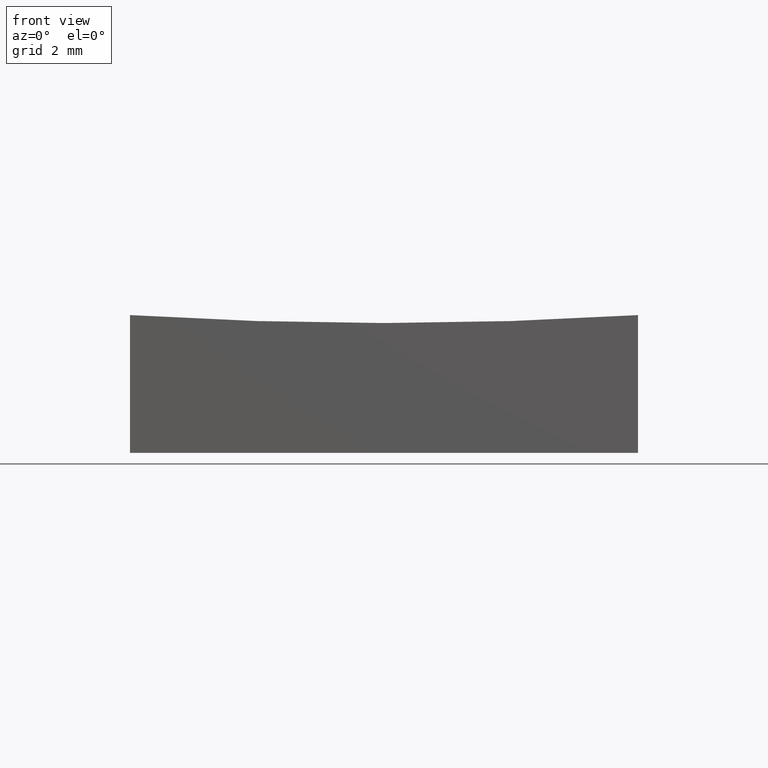
[diagram: clean part render]
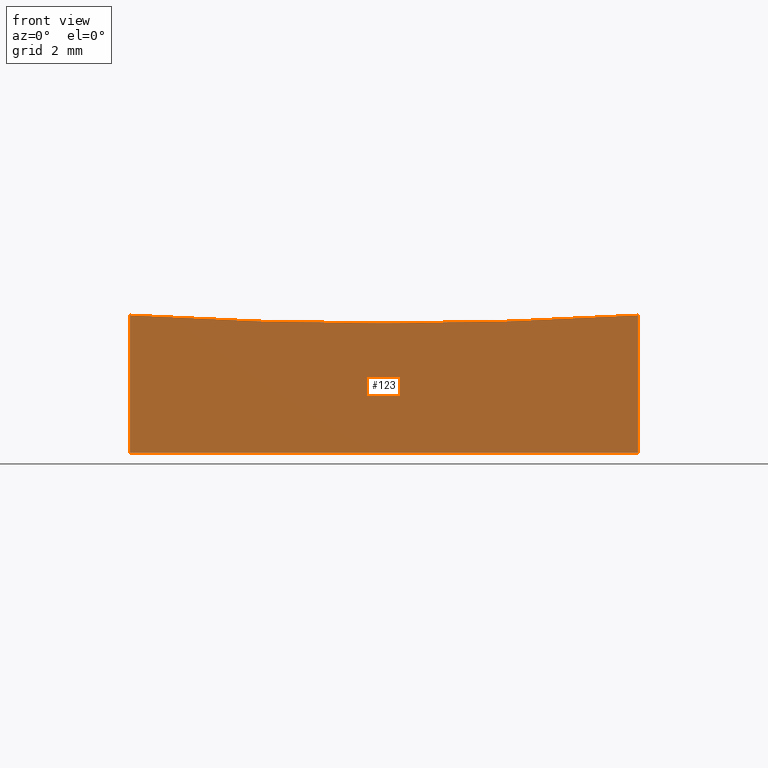
[diagram: same view with one face highlighted and labeled with its STEP entity id]
A machine part, front view. The second image highlights one B-rep face of the part: STEP entity #123.
In plain terms, the highlighted planar face has unit normal (0, 1, 0).
Its self-contained STEP definition (entity closure, byte-faithful):
#2 = ORIENTED_EDGE ( 'NONE', *, *, #203, .T. ) ;
#3 = ORIENTED_EDGE ( 'NONE', *, *, #249, .T. ) ;
#24 = CARTESIAN_POINT ( 'NONE',  ( 6.250000000000000000, -6.250000000000000888, 3.391390934317326078 ) ) ;
#26 = AXIS2_PLACEMENT_3D ( 'NONE', #145, #192, #29 ) ;
#29 = DIRECTION ( 'NONE',  ( 0.0000000000000000000, -0.0000000000000000000, 1.000000000000000000 ) ) ;
#37 = VERTEX_POINT ( 'NONE', #38 ) ;
#38 = CARTESIAN_POINT ( 'NONE',  ( 6.250000000000000000, -6.250000000000000888, 0.0000000000000000000 ) ) ;
#40 = VERTEX_POINT ( 'NONE', #114 ) ;
#42 = EDGE_CURVE ( 'NONE', #40, #37, #183, .T. ) ;
#49 = PLANE ( 'NONE',  #26 ) ;
#59 = VERTEX_POINT ( 'NONE', #24 ) ;
#63 = CARTESIAN_POINT ( 'NONE',  ( -6.250000000000000000, -6.250000000000000888, 10.00000000000000000 ) ) ;
#67 = VECTOR ( 'NONE', #198, 1000.000000000000000 ) ;
#69 = CARTESIAN_POINT ( 'NONE',  ( -6.250000000000000000, -6.250000000000000888, 3.391390934317326078 ) ) ;
#80 = CARTESIAN_POINT ( 'NONE',  ( -6.250000000000000000, -6.250000000000000888, 0.0000000000000000000 ) ) ;
#82 = DIRECTION ( 'NONE',  ( -0.0000000000000000000, -0.0000000000000000000, -1.000000000000000000 ) ) ;
#87 = VECTOR ( 'NONE', #82, 1000.000000000000000 ) ;
#92 = AXIS2_PLACEMENT_3D ( 'NONE', #139, #181, #184 ) ;
#94 = VECTOR ( 'NONE', #201, 1000.000000000000000 ) ;
#114 = CARTESIAN_POINT ( 'NONE',  ( -6.250000000000000000, -6.250000000000000888, 0.0000000000000000000 ) ) ;
#123 = ADVANCED_FACE ( 'NONE', ( #202 ), #49, .F. ) ;
#124 = CARTESIAN_POINT ( 'NONE',  ( 6.250000000000000000, -6.250000000000000888, 10.00000000000000000 ) ) ;
#131 = EDGE_CURVE ( 'NONE', #59, #37, #215, .T. ) ;
#139 = CARTESIAN_POINT ( 'NONE',  ( 1.261386203121774235E-14, -6.250000000000000888, 103.0000000000000142 ) ) ;
#140 = ORIENTED_EDGE ( 'NONE', *, *, #131, .F. ) ;
#145 = CARTESIAN_POINT ( 'NONE',  ( -6.250000000000000000, -6.250000000000000888, 10.00000000000000000 ) ) ;
#172 = CIRCLE ( 'NONE', #92, 99.80449639169572151 ) ;
#181 = DIRECTION ( 'NONE',  ( 0.0000000000000000000, 1.000000000000000000, 0.0000000000000000000 ) ) ;
#183 = LINE ( 'NONE', #80, #67 ) ;
#184 = DIRECTION ( 'NONE',  ( 0.0000000000000000000, 0.0000000000000000000, 1.000000000000000000 ) ) ;
#192 = DIRECTION ( 'NONE',  ( 0.0000000000000000000, 1.000000000000000000, 0.0000000000000000000 ) ) ;
#193 = EDGE_LOOP ( 'NONE', ( #140, #3, #2, #251 ) ) ;
#198 = DIRECTION ( 'NONE',  ( 1.000000000000000000, 0.0000000000000000000, 0.0000000000000000000 ) ) ;
#201 = DIRECTION ( 'NONE',  ( -0.0000000000000000000, -0.0000000000000000000, -1.000000000000000000 ) ) ;
#202 = FACE_OUTER_BOUND ( 'NONE', #193, .T. ) ;
#203 = EDGE_CURVE ( 'NONE', #226, #40, #239, .T. ) ;
#215 = LINE ( 'NONE', #124, #94 ) ;
#226 = VERTEX_POINT ( 'NONE', #69 ) ;
#239 = LINE ( 'NONE', #63, #87 ) ;
#249 = EDGE_CURVE ( 'NONE', #59, #226, #172, .T. ) ;
#251 = ORIENTED_EDGE ( 'NONE', *, *, #42, .T. ) ;